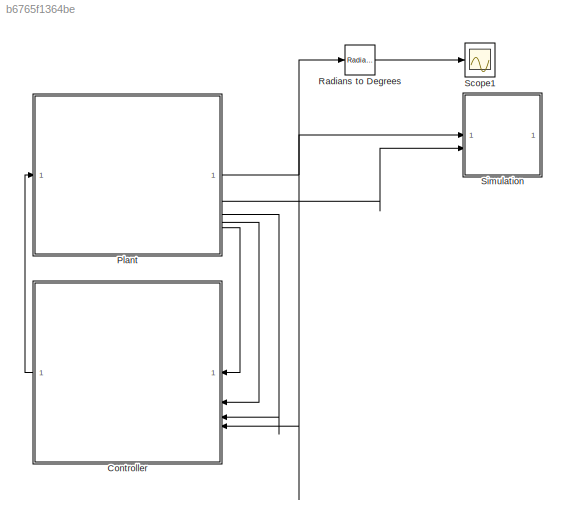
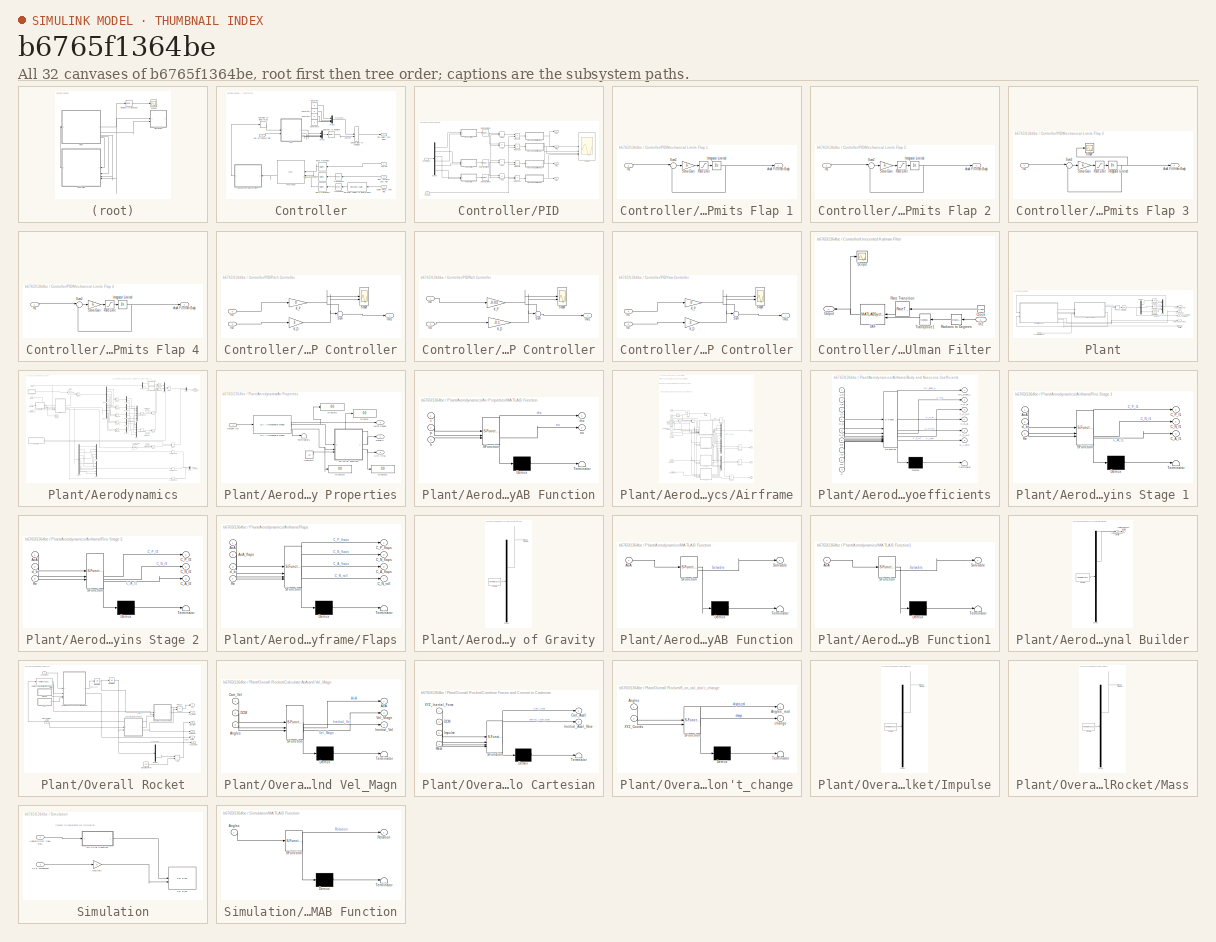
[diagram: thumbnail index - all 32 canvases of the model, root first then tree order]
MODEL slx_b6765f1364be
KIND model
CONFIG AbsTol = auto
CONFIG EnableMultiTasking = on
CONFIG FixedStep = 0.001
CONFIG MaxStep = auto
CONFIG MinStep = auto
CONFIG RelTol = auto
CONFIG SampleTimeConstraint = Unconstrained
CONFIG SolverName = VariableStepAuto
CONFIG StartTime = 0.0
CONFIG StopTime = 5
WORKSPACE source: mxarray member
WORKSPACE Length_NC: Simulink.Parameter (value not decoded)
BLOCK [SubSystem] Controller
BLOCK [Inport] Controller/Angles Pitch, Yaw, Roll
  NameLocation = top
  Port = 4
BLOCK [ComplexToRealImag] Controller/Complex to Real-Imag
  Output = Real
BLOCK [Constant] Controller/Constant
  Value = 0
BLOCK [Constant] Controller/Constant1
  Value = 0
BLOCK [Constant] Controller/Constant2
  Value = 0
BLOCK [Constant] Controller/Constant3
  Value = 0
BLOCK [Reference] Controller/Degrees to Radians  REF=simulink_extras/Transformations/Degrees to
Radians
  SourceBlock = simulink_extras/Transformations/Degrees to\nRadians
  SourceType = DegreesToRadians
BLOCK [ManualSwitch] Controller/Double Click to Toggle2
  CurrentSetting = 0
BLOCK [Outport] Controller/Fin Angle from Body
BLOCK [Inport] Controller/Inertial
  NameLocation = top
BLOCK [Reference] Controller/MPU 6050  REF=mspsensorlib/IMU
  NameLocation = top
  SourceBlock = mspsensorlib/IMU
  SourceType = fusion.simulink.imuSensor
BLOCK [Mux] Controller/Mux2
  DisplayOption = bar
BLOCK [Mux] Controller/Mux3
  DisplayOption = bar
BLOCK [Inport] Controller/Not on Launch Rail
  Port = 2
BLOCK [SubSystem] Controller/PID
BLOCK [Sum] Controller/PID/Add
  IconShape = rectangular
  Inputs = +-
BLOCK [Sum] Controller/PID/Add1
  IconShape = rectangular
BLOCK [Sum] Controller/PID/Add2
  IconShape = rectangular
BLOCK [Sum] Controller/PID/Add3
  IconShape = rectangular
  Inputs = +-
BLOCK [Inport] Controller/PID/Change
  Port = 2
BLOCK [Demux] Controller/PID/Demux
  Outputs = 6
BLOCK [Outport] Controller/PID/Fin 1
BLOCK [Outport] Controller/PID/Fin 2
  Port = 2
BLOCK [Outport] Controller/PID/Fin 3
  Port = 3
BLOCK [Outport] Controller/PID/Fin 4
  Port = 4
BLOCK [SubSystem] Controller/PID/Mechanical Limits Flap 1
BLOCK [Outport] Controller/PID/Mechanical Limits Flap 1/AoA Fin from Body
BLOCK [Inport] Controller/PID/Mechanical Limits Flap 1/In1
BLOCK [Integrator] Controller/PID/Mechanical Limits Flap 1/Integrator Limited
  LimitOutput = on
  LowerSaturationLimit = -15
  UpperSaturationLimit = 15
BLOCK [Saturate] Controller/PID/Mechanical Limits Flap 1/Rate Limit
  LowerLimit = -857.14
  UpperLimit = 857.14
BLOCK [Gain] Controller/PID/Mechanical Limits Flap 1/Servo Gain
  Gain = 6
BLOCK [Sum] Controller/PID/Mechanical Limits Flap 1/Sum2
  Inputs = |+-
BLOCK [SubSystem] Controller/PID/Mechanical Limits Flap 2
BLOCK [Outport] Controller/PID/Mechanical Limits Flap 2/AoA Fin from Body
BLOCK [Inport] Controller/PID/Mechanical Limits Flap 2/In1
BLOCK [Integrator] Controller/PID/Mechanical Limits Flap 2/Integrator Limited
  LimitOutput = on
  LowerSaturationLimit = -15
  UpperSaturationLimit = 15
BLOCK [Saturate] Controller/PID/Mechanical Limits Flap 2/Rate Limit
  LowerLimit = -857.14
  UpperLimit = 857.14
BLOCK [Gain] Controller/PID/Mechanical Limits Flap 2/Servo Gain
  Gain = 6
BLOCK [Sum] Controller/PID/Mechanical Limits Flap 2/Sum2
  Inputs = |+-
BLOCK [SubSystem] Controller/PID/Mechanical Limits Flap 3
BLOCK [Outport] Controller/PID/Mechanical Limits Flap 3/AoA Fin from Body
BLOCK [Inport] Controller/PID/Mechanical Limits Flap 3/In1
BLOCK [Integrator] Controller/PID/Mechanical Limits Flap 3/Integrator Limited
  LimitOutput = on
  LowerSaturationLimit = -15
  UpperSaturationLimit = 15
BLOCK [Saturate] Controller/PID/Mechanical Limits Flap 3/Rate Limit
  LowerLimit = -857.14
  UpperLimit = 857.14
BLOCK [Scope] Controller/PID/Mechanical Limits Flap 3/Scope
  Floating = off
  NumInputPorts = 1
  ScopeSpecificationString = Simulink.scopes.TimeScopeBlockCfg('CurrentConfiguration', extmgr.ConfigurationSet(extmgr.Configuration('Core','General UI',true),extmgr.Configuration('Core','Source UI',true),extmgr.Configuration('Sources','WiredSimulink',true,'DataLoggingVariableName','ScopeData4'),extmgr.Configuration('Visuals','Time Domain',true,'SerializedDisplays',{struct('MinYLimReal','-1.875','MaxYLimReal','16.875','YLabelR...<+1369ch>
BLOCK [Gain] Controller/PID/Mechanical Limits Flap 3/Servo Gain
  Gain = 6
BLOCK [Sum] Controller/PID/Mechanical Limits Flap 3/Sum2
  Inputs = |+-
BLOCK [SubSystem] Controller/PID/Mechanical Limits Flap 4
BLOCK [Outport] Controller/PID/Mechanical Limits Flap 4/AoA Fin from Body
BLOCK [Inport] Controller/PID/Mechanical Limits Flap 4/In1
BLOCK [Integrator] Controller/PID/Mechanical Limits Flap 4/Integrator Limited
  LimitOutput = on
  LowerSaturationLimit = -15
  UpperSaturationLimit = 15
BLOCK [Saturate] Controller/PID/Mechanical Limits Flap 4/Rate Limit
  LowerLimit = -857.14
  UpperLimit = 857.14
BLOCK [Gain] Controller/PID/Mechanical Limits Flap 4/Servo Gain
  Gain = 6
BLOCK [Sum] Controller/PID/Mechanical Limits Flap 4/Sum2
  Inputs = |+-
BLOCK [SubSystem] Controller/PID/Pitch Controller
BLOCK [Inport] Controller/PID/Pitch Controller/In1
BLOCK [Inport] Controller/PID/Pitch Controller/In2
  Port = 2
BLOCK [Gain] Controller/PID/Pitch Controller/K_D
  Gain = 3
BLOCK [Gain] Controller/PID/Pitch Controller/K_P
  Gain = 0
BLOCK [Outport] Controller/PID/Pitch Controller/Out1
BLOCK [Scope] Controller/PID/Pitch Controller/Scope
  Floating = off
  NumInputPorts = 4
  ScopeSpecificationString = Simulink.scopes.TimeScopeBlockCfg('CurrentConfiguration', extmgr.ConfigurationSet(extmgr.Configuration('Core','General UI',true),extmgr.Configuration('Core','Source UI',true),extmgr.Configuration('Sources','WiredSimulink',true,'DataLoggingVariableName','ScopeData4'),extmgr.Configuration('Visuals','Time Domain',true,'SerializedDisplays',{struct('MinYLimReal','-0.00565','MaxYLimReal','0.00089','YLab...<+1755ch>
BLOCK [Sum] Controller/PID/Pitch Controller/Sum
  Inputs = ++++
BLOCK [Product] Controller/PID/Product10
BLOCK [Product] Controller/PID/Product11
BLOCK [Product] Controller/PID/Product8
BLOCK [Product] Controller/PID/Product9
BLOCK [RateTransition] Controller/PID/Rate Transition4
BLOCK [RateTransition] Controller/PID/Rate Transition5
BLOCK [RateTransition] Controller/PID/Rate Transition6
BLOCK [SubSystem] Controller/PID/Roll Controller
BLOCK [Inport] Controller/PID/Roll Controller/In2
BLOCK [Inport] Controller/PID/Roll Controller/In3
  Port = 2
BLOCK [Gain] Controller/PID/Roll Controller/K_D
  Gain = -0.1
BLOCK [Gain] Controller/PID/Roll Controller/K_P
  Gain = -0.03
BLOCK [Outport] Controller/PID/Roll Controller/Out1
BLOCK [Scope] Controller/PID/Roll Controller/Scope
  Floating = off
  NumInputPorts = 4
  ScopeSpecificationString = Simulink.scopes.TimeScopeBlockCfg('CurrentConfiguration', extmgr.ConfigurationSet(extmgr.Configuration('Core','General UI',true),extmgr.Configuration('Core','Source UI',true),extmgr.Configuration('Sources','WiredSimulink',true,'DataLoggingVariableName','ScopeData4'),extmgr.Configuration('Visuals','Time Domain',true,'SerializedDisplays',{struct('MinYLimReal','-0.02201','MaxYLimReal','0.01858','YLab...<+1768ch>
BLOCK [Sum] Controller/PID/Roll Controller/Sum
  Inputs = ++++
BLOCK [Scope] Controller/PID/Scope
  Floating = off
  NumInputPorts = 4
  ScopeSpecificationString = Simulink.scopes.TimeScopeBlockCfg('CurrentConfiguration', extmgr.ConfigurationSet(extmgr.Configuration('Core','General UI',true),extmgr.Configuration('Core','Source UI',true),extmgr.Configuration('Sources','WiredSimulink',true,'DataLoggingVariableName','ScopeData1'),extmgr.Configuration('Visuals','Time Domain',true,'SerializedDisplays',{struct('MinYLimReal','-18.75','MaxYLimReal','18.75','YLabelRe...<+1504ch>
BLOCK [Inport] Controller/PID/UKF Output
BLOCK [SubSystem] Controller/PID/Yaw Controller
BLOCK [Inport] Controller/PID/Yaw Controller/In1
BLOCK [Inport] Controller/PID/Yaw Controller/In2
  Port = 2
BLOCK [Gain] Controller/PID/Yaw Controller/K_D
  Gain = 3
BLOCK [Gain] Controller/PID/Yaw Controller/K_P
  Gain = 0
BLOCK [Outport] Controller/PID/Yaw Controller/Out1
BLOCK [Scope] Controller/PID/Yaw Controller/Scope
  Floating = off
  NumInputPorts = 4
  ScopeSpecificationString = Simulink.scopes.TimeScopeBlockCfg('CurrentConfiguration', extmgr.ConfigurationSet(extmgr.Configuration('Core','General UI',true),extmgr.Configuration('Core','Source UI',true),extmgr.Configuration('Sources','WiredSimulink',true,'DataLoggingVariableName','ScopeData4'),extmgr.Configuration('Visuals','Time Domain',true,'SerializedDisplays',{struct('MinYLimReal','-0.2233','MaxYLimReal','0.24185','YLabe...<+1768ch>
BLOCK [Sum] Controller/PID/Yaw Controller/Sum
  Inputs = ++++
BLOCK [Inport] Controller/Rad. Vel Pitch, Yaw, Roll
  NameLocation = top
  Port = 3
BLOCK [RateTransition] Controller/Rate Transition
  NameLocation = top
  OutPortSampleTime = 0.001
BLOCK [RateTransition] Controller/Rate Transition1
  NameLocation = top
  OutPortSampleTime = 0.001
BLOCK [RateTransition] Controller/Rate Transition2
  NameLocation = top
  OutPortSampleTime = 0.001
BLOCK [Reference] Controller/Rotation Angles to Quaternions  REF=sharedtransform/Rotation Angles to Quaternions
  AttributesFormatString = Rotation Order: %<rotationOrder>
  LibrarySourceBlock = aerolibtransform2/Rotation Angles to Quaternions
  NameLocation = top
  SourceBlock = sharedtransform/Rotation Angles to Quaternions
  SourceType = Ang2Quat
BLOCK [Math] Controller/Transpose
  NameLocation = top
  Operator = transpose
BLOCK [Math] Controller/Transpose1
  NameLocation = top
  Operator = transpose
BLOCK [SubSystem] Controller/Unscented Kalman Filter
  NameLocation = top
BLOCK [Clock] Controller/Unscented Kalman Filter/Clock
  NameLocation = top
BLOCK [Inport] Controller/Unscented Kalman Filter/In2
  NameLocation = top
BLOCK [Outport] Controller/Unscented Kalman Filter/Output
  NameLocation = top
BLOCK [Reference] Controller/Unscented Kalman Filter/Radians to Degrees  REF=simulink_extras/Transformations/Radians
to Degrees
  NameLocation = top
  SourceBlock = simulink_extras/Transformations/Radians\nto Degrees
  SourceType = RadiansToDegrees
BLOCK [RateTransition] Controller/Unscented Kalman Filter/Rate Transition
  NameLocation = top
  OutPortSampleTime = 0.001
BLOCK [Scope] Controller/Unscented Kalman Filter/Scope
  Floating = off
  NumInputPorts = 1
BLOCK [Math] Controller/Unscented Kalman Filter/Transpose1
  NameLocation = top
  Operator = transpose
BLOCK [MATLABSystem] Controller/Unscented Kalman Filter/UKF
  MaskDisplay = disp('UKF');\nport_label('input',1,'time');\nport_label('input',2,'z');\nport_label('output',1,'y');\nport_label('output',2,'P');
  MaskType = UKF
  NameLocation = top
  Q_ = 0.1
  R_ = 0.1
  SimulateUsing = Code generation
  System = UKF
  alfa = 0.001
  beta = 2.0
  kappa = 0.0
  x_0 = 0
BLOCK [SubSystem] Plant
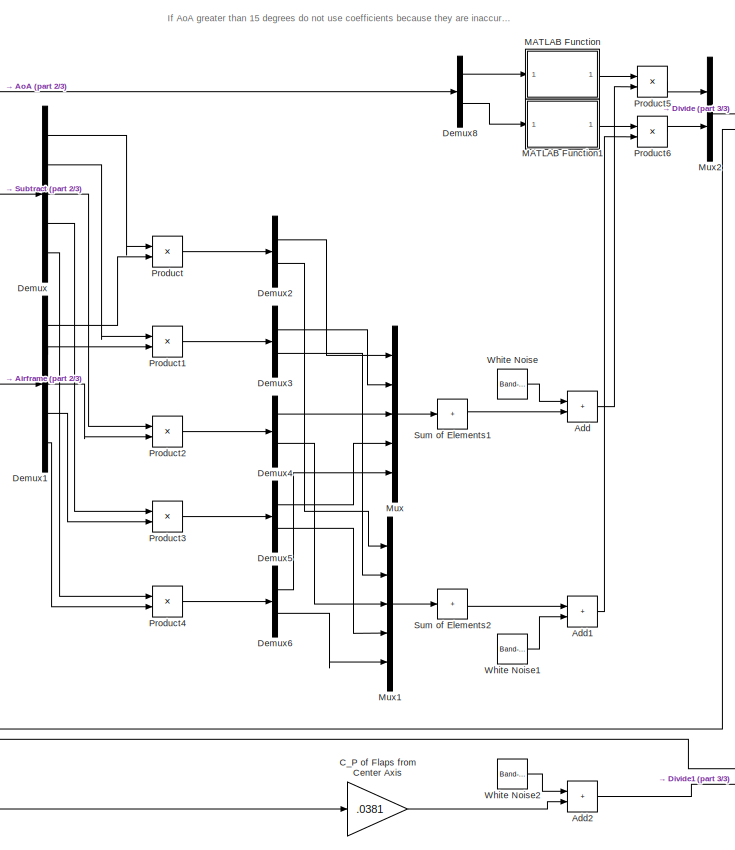
[diagram: Plant/Aerodynamics - part 1/3, central region]
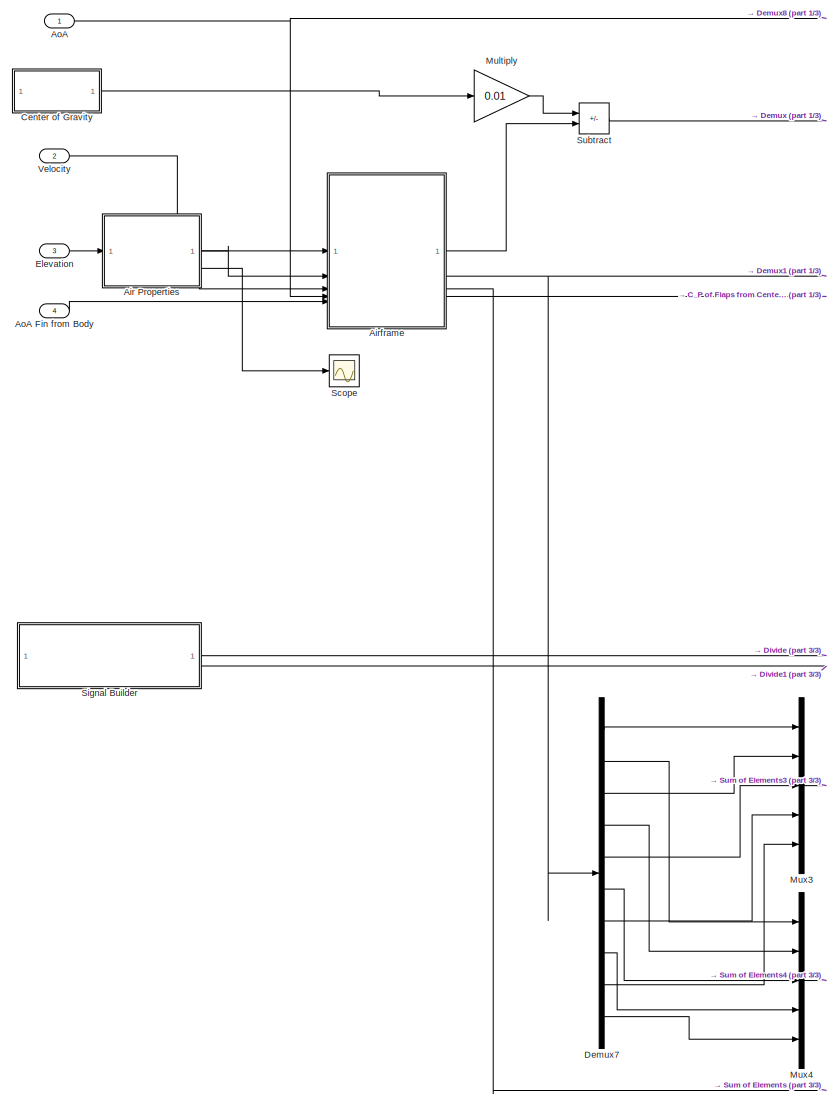
[diagram: Plant/Aerodynamics - part 2/3, left side, full height]
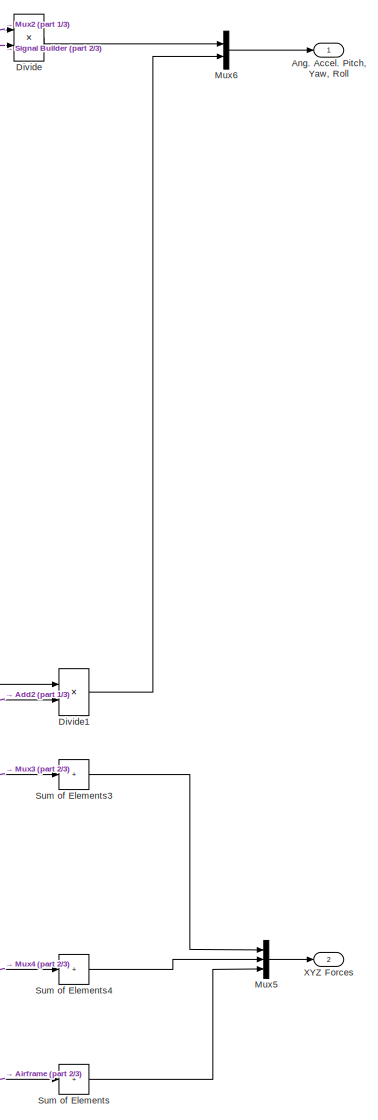
[diagram: Plant/Aerodynamics - part 3/3, right side, full height]
BLOCK [SubSystem] Plant/Aerodynamics
BLOCK [Sum] Plant/Aerodynamics/Add
  IconShape = rectangular
BLOCK [Sum] Plant/Aerodynamics/Add1
  IconShape = rectangular
BLOCK [Sum] Plant/Aerodynamics/Add2
  IconShape = rectangular
BLOCK [SubSystem] Plant/Aerodynamics/Air Properties
BLOCK [Outport] Plant/Aerodynamics/Air Properties/Density
BLOCK [Display] Plant/Aerodynamics/Air Properties/Display
  Decimation = 1
BLOCK [Display] Plant/Aerodynamics/Air Properties/Display1
  Decimation = 1
BLOCK [Display] Plant/Aerodynamics/Air Properties/Display2
  Decimation = 1
BLOCK [Display] Plant/Aerodynamics/Air Properties/Display3
  Decimation = 1
BLOCK [Inport] Plant/Aerodynamics/Air Properties/Height (m)
BLOCK [Constant] Plant/Aerodynamics/Air Properties/Humidity
  Value = 10
BLOCK [Reference] Plant/Aerodynamics/Air Properties/ISA Atmosphere Model  REF=aerolibatmos2/ISA Atmosphere Model
  SourceBlock = aerolibatmos2/ISA Atmosphere Model
  SourceType = International Standard Atmosphere Model
BLOCK [Outport] Plant/Aerodynamics/Air Properties/Kin. Visc.
  Port = 2
BLOCK [SubSystem] Plant/Aerodynamics/Air Properties/MATLAB Function
  ErrorFcn = Stateflow.Translate.translate
  PermitHierarchicalResolution = ExplicitOnly
  SFBlockType = MATLAB Function
  TreatAsAtomicUnit = on
BLOCK [Demux] Plant/Aerodynamics/Air Properties/MATLAB Function/ Demux 
  Outputs = 1
BLOCK [S-Function] Plant/Aerodynamics/Air Properties/MATLAB Function/ SFunction 
  EnableBusSupport = on
  FunctionName = sf_sfun
  PortCounts = [3 3]
  SFcnIsStateOwnerBlock = off
  SFunctionDeploymentMode = off
  Tag = Stateflow S-Function 2
BLOCK [Terminator] Plant/Aerodynamics/Air Properties/MATLAB Function/ Terminator 
BLOCK [Inport] Plant/Aerodynamics/Air Properties/MATLAB Function/h
  Port = 3
BLOCK [Outport] Plant/Aerodynamics/Air Properties/MATLAB Function/nu
  Port = 2
BLOCK [Inport] Plant/Aerodynamics/Air Properties/MATLAB Function/p
  Port = 2
BLOCK [Outport] Plant/Aerodynamics/Air Properties/MATLAB Function/rho
BLOCK [Inport] Plant/Aerodynamics/Air Properties/MATLAB Function/t
BLOCK [Terminator] Plant/Aerodynamics/Air Properties/Terminator1
BLOCK [Outport] Plant/Aerodynamics/Air Properties/Wind Speed
  Port = 3
BLOCK [SubSystem] Plant/Aerodynamics/Airframe
BLOCK [Sum] Plant/Aerodynamics/Airframe/Add
  IconShape = rectangular
BLOCK [Inport] Plant/Aerodynamics/Airframe/AoA
  Port = 4
BLOCK [Inport] Plant/Aerodynamics/Airframe/AoA Fin from Body
  Port = 5
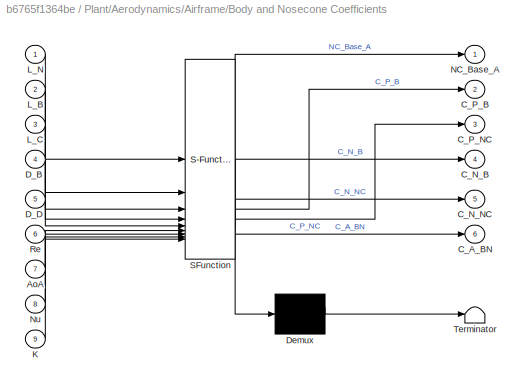
BLOCK [SubSystem] Plant/Aerodynamics/Airframe/Body  and Nosecone Coefficients
  ErrorFcn = Stateflow.Translate.translate
  LibrarySourceBlock = simulink/User-Defined\nFunctions/MATLAB Function
  PermitHierarchicalResolution = ExplicitOnly
  SFBlockType = MATLAB Function
  TreatAsAtomicUnit = on
BLOCK [Demux] Plant/Aerodynamics/Airframe/Body  and Nosecone Coefficients/ Demux 
  Outputs = 1
BLOCK [S-Function] Plant/Aerodynamics/Airframe/Body  and Nosecone Coefficients/ SFunction 
  EnableBusSupport = on
  FunctionName = sf_sfun
  PortCounts = [9 7]
  SFcnIsStateOwnerBlock = off
  SFunctionDeploymentMode = off
  Tag = Stateflow S-Function 3
BLOCK [Terminator] Plant/Aerodynamics/Airframe/Body  and Nosecone Coefficients/ Terminator 
BLOCK [Inport] Plant/Aerodynamics/Airframe/Body  and Nosecone Coefficients/AoA
  Port = 7
BLOCK [Outport] Plant/Aerodynamics/Airframe/Body  and Nosecone Coefficients/C_A_BN
  Port = 6
BLOCK [Outport] Plant/Aerodynamics/Airframe/Body  and Nosecone Coefficients/C_N_B
  Port = 4
BLOCK [Outport] Plant/Aerodynamics/Airframe/Body  and Nosecone Coefficients/C_N_NC
  Port = 5
BLOCK [Outport] Plant/Aerodynamics/Airframe/Body  and Nosecone Coefficients/C_P_B
  Port = 2
BLOCK [Outport] Plant/Aerodynamics/Airframe/Body  and Nosecone Coefficients/C_P_NC
  Port = 3
BLOCK [Inport] Plant/Aerodynamics/Airframe/Body  and Nosecone Coefficients/D_B
  Port = 4
BLOCK [Inport] Plant/Aerodynamics/Airframe/Body  and Nosecone Coefficients/D_D
  Port = 5
BLOCK [Inport] Plant/Aerodynamics/Airframe/Body  and Nosecone Coefficients/K
  Port = 9
BLOCK [Inport] Plant/Aerodynamics/Airframe/Body  and Nosecone Coefficients/L_B
  Port = 2
BLOCK [Inport] Plant/Aerodynamics/Airframe/Body  and Nosecone Coefficients/L_C
  Port = 3
BLOCK [Inport] Plant/Aerodynamics/Airframe/Body  and Nosecone Coefficients/L_N
BLOCK [Outport] Plant/Aerodynamics/Airframe/Body  and Nosecone Coefficients/NC_Base_A
BLOCK [Inport] Plant/Aerodynamics/Airframe/Body  and Nosecone Coefficients/Nu
  Port = 8
BLOCK [Inport] Plant/Aerodynamics/Airframe/Body  and Nosecone Coefficients/Re
  Port = 6
BLOCK [Mux] Plant/Aerodynamics/Airframe/C_A
  DisplayOption = bar
BLOCK [Mux] Plant/Aerodynamics/Airframe/C_N
  DisplayOption = bar
  Inputs = 5
BLOCK [Outport] Plant/Aerodynamics/Airframe/C_P
BLOCK [Inport] Plant/Aerodynamics/Airframe/Density
  Port = 2
BLOCK [Constant] Plant/Aerodynamics/Airframe/Diameter Body
  Value = .079
BLOCK [Product] Plant/Aerodynamics/Airframe/Divide
  Inputs = **
BLOCK [Product] Plant/Aerodynamics/Airframe/Divide3
  Inputs = **/
BLOCK [Outport] Plant/Aerodynamics/Airframe/F_A
  Port = 3
BLOCK [Outport] Plant/Aerodynamics/Airframe/F_N
  Port = 2
BLOCK [SubSystem] Plant/Aerodynamics/Airframe/Fins Stage 1
  ErrorFcn = Stateflow.Translate.translate
  LibrarySourceBlock = simulink/User-Defined\nFunctions/MATLAB Function
  PermitHierarchicalResolution = ExplicitOnly
  SFBlockType = MATLAB Function
  TreatAsAtomicUnit = on
BLOCK [Demux] Plant/Aerodynamics/Airframe/Fins Stage 1/ Demux 
  Outputs = 1
BLOCK [S-Function] Plant/Aerodynamics/Airframe/Fins Stage 1/ SFunction 
  EnableBusSupport = on
  FunctionName = sf_sfun
  PortCounts = [3 4]
  SFcnIsStateOwnerBlock = off
  SFunctionDeploymentMode = off
  Tag = Stateflow S-Function 13
BLOCK [Terminator] Plant/Aerodynamics/Airframe/Fins Stage 1/ Terminator 
BLOCK [Inport] Plant/Aerodynamics/Airframe/Fins Stage 1/AoA
BLOCK [Outport] Plant/Aerodynamics/Airframe/Fins Stage 1/C_A_f1
  Port = 3
BLOCK [Outport] Plant/Aerodynamics/Airframe/Fins Stage 1/C_N_f1
  Port = 2
BLOCK [Outport] Plant/Aerodynamics/Airframe/Fins Stage 1/C_P_f1
BLOCK [Inport] Plant/Aerodynamics/Airframe/Fins Stage 1/Re
  Port = 3
BLOCK [Inport] Plant/Aerodynamics/Airframe/Fins Stage 1/d_bt
  Port = 2
BLOCK [SubSystem] Plant/Aerodynamics/Airframe/Fins Stage 2
  ErrorFcn = Stateflow.Translate.translate
  LibrarySourceBlock = simulink/User-Defined\nFunctions/MATLAB Function
  PermitHierarchicalResolution = ExplicitOnly
  SFBlockType = MATLAB Function
  TreatAsAtomicUnit = on
BLOCK [Demux] Plant/Aerodynamics/Airframe/Fins Stage 2/ Demux 
  Outputs = 1
BLOCK [S-Function] Plant/Aerodynamics/Airframe/Fins Stage 2/ SFunction 
  EnableBusSupport = on
  FunctionName = sf_sfun
  PortCounts = [3 4]
  SFcnIsStateOwnerBlock = off
  SFunctionDeploymentMode = off
  Tag = Stateflow S-Function 11
BLOCK [Terminator] Plant/Aerodynamics/Airframe/Fins Stage 2/ Terminator 
BLOCK [Inport] Plant/Aerodynamics/Airframe/Fins Stage 2/AoA
BLOCK [Outport] Plant/Aerodynamics/Airframe/Fins Stage 2/C_A_f2
  Port = 3
BLOCK [Outport] Plant/Aerodynamics/Airframe/Fins Stage 2/C_N_f2
  Port = 2
BLOCK [Outport] Plant/Aerodynamics/Airframe/Fins Stage 2/C_P_f2
BLOCK [Inport] Plant/Aerodynamics/Airframe/Fins Stage 2/Re
  Port = 3
BLOCK [Inport] Plant/Aerodynamics/Airframe/Fins Stage 2/d_bt
  Port = 2
BLOCK [SubSystem] Plant/Aerodynamics/Airframe/Flaps
  ErrorFcn = Stateflow.Translate.translate
  LibrarySourceBlock = simulink/User-Defined\nFunctions/MATLAB Function
  PermitHierarchicalResolution = ExplicitOnly
  SFBlockType = MATLAB Function
  TreatAsAtomicUnit = on
BLOCK [Demux] Plant/Aerodynamics/Airframe/Flaps/ Demux 
  Outputs = 1
BLOCK [S-Function] Plant/Aerodynamics/Airframe/Flaps/ SFunction 
  EnableBusSupport = on
  FunctionName = sf_sfun
  PortCounts = [4 5]
  SFcnIsStateOwnerBlock = off
  SFunctionDeploymentMode = off
  Tag = Stateflow S-Function 7
BLOCK [Terminator] Plant/Aerodynamics/Airframe/Flaps/ Terminator 
BLOCK [Inport] Plant/Aerodynamics/Airframe/Flaps/AoA
BLOCK [Inport] Plant/Aerodynamics/Airframe/Flaps/AoA_flaps
  Port = 2
BLOCK [Outport] Plant/Aerodynamics/Airframe/Flaps/C_A_flaps
  Port = 3
BLOCK [Outport] Plant/Aerodynamics/Airframe/Flaps/C_N_flaps
  Port = 2
BLOCK [Outport] Plant/Aerodynamics/Airframe/Flaps/C_N_roll
  Port = 4
BLOCK [Outport] Plant/Aerodynamics/Airframe/Flaps/C_P_flaps
BLOCK [Inport] Plant/Aerodynamics/Airframe/Flaps/Re
  Port = 4
BLOCK [Inport] Plant/Aerodynamics/Airframe/Flaps/d_bt
  Port = 3
BLOCK [Constant] Plant/Aerodynamics/Airframe/K_Value
BLOCK [Inport] Plant/Aerodynamics/Airframe/Kin. Visc.
  Port = 3
BLOCK [Constant] Plant/Aerodynamics/Airframe/Length Body
  Value = .08+.61+.783
BLOCK [Constant] Plant/Aerodynamics/Airframe/Length Conical Section
  Value = 0
BLOCK [Constant] Plant/Aerodynamics/Airframe/Length NC
  Value = .33
BLOCK [Gain] Plant/Aerodynamics/Airframe/Multiply
  Gain = 1/2
BLOCK [Mux] Plant/Aerodynamics/Airframe/Mux1
  DisplayOption = bar
  Inputs = 5
BLOCK [Product] Plant/Aerodynamics/Airframe/Product1
BLOCK [Product] Plant/Aerodynamics/Airframe/Product2
BLOCK [Product] Plant/Aerodynamics/Airframe/Product3
BLOCK [Product] Plant/Aerodynamics/Airframe/Product4
BLOCK [Outport] Plant/Aerodynamics/Airframe/Roll
  Port = 4
BLOCK [Math] Plant/Aerodynamics/Airframe/Square
  Operator = square
BLOCK [Inport] Plant/Aerodynamics/Airframe/Velocity
BLOCK [Outport] Plant/Aerodynamics/Ang. Accel. Pitch, Yaw, Roll
BLOCK [Inport] Plant/Aerodynamics/AoA
BLOCK [Inport] Plant/Aerodynamics/AoA Fin from Body
  Port = 4
BLOCK [Gain] Plant/Aerodynamics/C_P of Flaps from Center Axis
  Gain = .0381
BLOCK [SubSystem] Plant/Aerodynamics/Center of Gravity
  ClipboardFcn = sigbuilder_block('clipboard');
  CloseFcn = sigbuilder_block('close');
  ContinueFcn = sigbuilder_block('continue');
  CopyFcn = sigbuilder_block('copy');
  DeleteFcn = sigbuilder_block('delete');
  LoadFcn = sigbuilder_block('load');
  MaskHideContents = on
  ModelCloseFcn = sigbuilder_block('modelClose');
  NameChangeFcn = sigbuilder_block('namechange');
  OpenFcn = sigbuilder_block('open',[309.6 144.6 550.8 400.2 ]);
  PauseFcn = sigbuilder_block('pause');
  PreSaveFcn = sigbuilder_block('preSave');
  StartFcn = sigbuilder_block('start');
  StopFcn = sigbuilder_block('stop');
  Tag = STV Subsys
BLOCK [Demux] Plant/Aerodynamics/Center of Gravity/Demux
  DisplayOption = none
  Outputs = 1
  Tag = STV Demux
BLOCK [FromWorkspace] Plant/Aerodynamics/Center of Gravity/FromWs
  Tag = STV FromWs
  VariableName = tuvar
BLOCK [Outport] Plant/Aerodynamics/Center of Gravity/Signal 2
  Tag = STV Outport
BLOCK [Demux] Plant/Aerodynamics/Demux
  Outputs = 5
BLOCK [Demux] Plant/Aerodynamics/Demux1
  Outputs = 5
BLOCK [Demux] Plant/Aerodynamics/Demux2
  Outputs = 2
BLOCK [Demux] Plant/Aerodynamics/Demux3
  Outputs = 2
BLOCK [Demux] Plant/Aerodynamics/Demux4
  Outputs = 2
BLOCK [Demux] Plant/Aerodynamics/Demux5
  Outputs = 2
BLOCK [Demux] Plant/Aerodynamics/Demux6
  Outputs = 2
BLOCK [Demux] Plant/Aerodynamics/Demux7
  Outputs = 10
BLOCK [Demux] Plant/Aerodynamics/Demux8
  Outputs = 2
BLOCK [Product] Plant/Aerodynamics/Divide
  Inputs = */
BLOCK [Product] Plant/Aerodynamics/Divide1
  Inputs = /*
BLOCK [Inport] Plant/Aerodynamics/Elevation
  Port = 3
BLOCK [SubSystem] Plant/Aerodynamics/MATLAB Function
  ErrorFcn = Stateflow.Translate.translate
  LibrarySourceBlock = simulink/User-Defined\nFunctions/MATLAB Function
  PermitHierarchicalResolution = ExplicitOnly
  SFBlockType = MATLAB Function
  TreatAsAtomicUnit = on
BLOCK [Demux] Plant/Aerodynamics/MATLAB Function/ Demux 
  Outputs = 1
BLOCK [S-Function] Plant/Aerodynamics/MATLAB Function/ SFunction 
  EnableBusSupport = on
  FunctionName = sf_sfun
  PortCounts = [1 2]
  SFcnIsStateOwnerBlock = off
  SFunctionDeploymentMode = off
  Tag = Stateflow S-Function 8
BLOCK [Terminator] Plant/Aerodynamics/MATLAB Function/ Terminator 
BLOCK [Inport] Plant/Aerodynamics/MATLAB Function/AoA
BLOCK [Outport] Plant/Aerodynamics/MATLAB Function/Solvable
BLOCK [SubSystem] Plant/Aerodynamics/MATLAB Function1
  ErrorFcn = Stateflow.Translate.translate
  LibrarySourceBlock = simulink/User-Defined\nFunctions/MATLAB Function
  PermitHierarchicalResolution = ExplicitOnly
  SFBlockType = MATLAB Function
  TreatAsAtomicUnit = on
BLOCK [Demux] Plant/Aerodynamics/MATLAB Function1/ Demux 
  Outputs = 1
BLOCK [S-Function] Plant/Aerodynamics/MATLAB Function1/ SFunction 
  EnableBusSupport = on
  FunctionName = sf_sfun
  PortCounts = [1 2]
  SFcnIsStateOwnerBlock = off
  SFunctionDeploymentMode = off
  Tag = Stateflow S-Function 18
BLOCK [Terminator] Plant/Aerodynamics/MATLAB Function1/ Terminator 
BLOCK [Inport] Plant/Aerodynamics/MATLAB Function1/AoA
BLOCK [Outport] Plant/Aerodynamics/MATLAB Function1/Solvable
BLOCK [Gain] Plant/Aerodynamics/Multiply
  Gain = 0.01
BLOCK [Mux] Plant/Aerodynamics/Mux
  DisplayOption = bar
  Inputs = 5
BLOCK [Mux] Plant/Aerodynamics/Mux1
  DisplayOption = bar
  Inputs = 5
BLOCK [Mux] Plant/Aerodynamics/Mux2
  DisplayOption = bar
  Inputs = 2
BLOCK [Mux] Plant/Aerodynamics/Mux3
  DisplayOption = bar
  Inputs = 5
BLOCK [Mux] Plant/Aerodynamics/Mux4
  DisplayOption = bar
  Inputs = 5
BLOCK [Mux] Plant/Aerodynamics/Mux5
  DisplayOption = bar
  Inputs = 3
BLOCK [Mux] Plant/Aerodynamics/Mux6
  DisplayOption = bar
  Inputs = 2
BLOCK [Product] Plant/Aerodynamics/Product
BLOCK [Product] Plant/Aerodynamics/Product1
BLOCK [Product] Plant/Aerodynamics/Product2
BLOCK [Product] Plant/Aerodynamics/Product3
BLOCK [Product] Plant/Aerodynamics/Product4
BLOCK [Product] Plant/Aerodynamics/Product5
BLOCK [Product] Plant/Aerodynamics/Product6
BLOCK [Scope] Plant/Aerodynamics/Scope
  Floating = off
  NumInputPorts = 1
  ScopeSpecificationString = Simulink.scopes.TimeScopeBlockCfg('CurrentConfiguration', extmgr.ConfigurationSet(extmgr.Configuration('Core','General UI',true),extmgr.Configuration('Core','Source UI',true),extmgr.Configuration('Sources','WiredSimulink',true,'DataLoggingVariableName','ScopeData2'),extmgr.Configuration('Visuals','Time Domain',true,'SerializedDisplays',{struct('MinYLimReal','334.41365','MaxYLimReal','340.94751','Y...<+1452ch>
BLOCK [SubSystem] Plant/Aerodynamics/Signal Builder
  ClipboardFcn = sigbuilder_block('clipboard');
  CloseFcn = sigbuilder_block('close');
  ContinueFcn = sigbuilder_block('continue');
  CopyFcn = sigbuilder_block('copy');
  DeleteFcn = sigbuilder_block('delete');
  LoadFcn = sigbuilder_block('load');
  MaskHideContents = on
  ModelCloseFcn = sigbuilder_block('modelClose');
  NameChangeFcn = sigbuilder_block('namechange');
  OpenFcn = sigbuilder_block('open',[375 140.4 550.8 400.2 ]);
  PauseFcn = sigbuilder_block('pause');
  PreSaveFcn = sigbuilder_block('preSave');
  StartFcn = sigbuilder_block('start');
  StopFcn = sigbuilder_block('stop');
  Tag = STV Subsys
BLOCK [Demux] Plant/Aerodynamics/Signal Builder/Demux
  DisplayOption = none
  Outputs = 2
  Tag = STV Demux
BLOCK [FromWorkspace] Plant/Aerodynamics/Signal Builder/FromWs
  Tag = STV FromWs
  VariableName = tuvar
BLOCK [Outport] Plant/Aerodynamics/Signal Builder/Logitudinal Moment of Inertia
  Tag = STV Outport
BLOCK [Outport] Plant/Aerodynamics/Signal Builder/Rotational Moment of Inertia
  Port = 2
  Tag = STV Outport
BLOCK [Sum] Plant/Aerodynamics/Subtract
  IconShape = rectangular
  Inputs = +-
BLOCK [Sum] Plant/Aerodynamics/Sum of Elements
  IconShape = rectangular
  Inputs = +
BLOCK [Sum] Plant/Aerodynamics/Sum of Elements1
  IconShape = rectangular
  Inputs = +
BLOCK [Sum] Plant/Aerodynamics/Sum of Elements2
  IconShape = rectangular
  Inputs = +
BLOCK [Sum] Plant/Aerodynamics/Sum of Elements3
  IconShape = rectangular
  Inputs = +
BLOCK [Sum] Plant/Aerodynamics/Sum of Elements4
  IconShape = rectangular
  Inputs = +
BLOCK [Inport] Plant/Aerodynamics/Velocity
  Port = 2
BLOCK [Reference] Plant/Aerodynamics/White Noise  REF=simulink/Sources/Band-Limited
White Noise
  SourceBlock = simulink/Sources/Band-Limited\nWhite Noise
  SourceType = Band-Limited White Noise.
BLOCK [Reference] Plant/Aerodynamics/White Noise1  REF=simulink/Sources/Band-Limited
White Noise
  SourceBlock = simulink/Sources/Band-Limited\nWhite Noise
  SourceType = Band-Limited White Noise.
BLOCK [Reference] Plant/Aerodynamics/White Noise2  REF=simulink/Sources/Band-Limited
White Noise
  SourceBlock = simulink/Sources/Band-Limited\nWhite Noise
  SourceType = Band-Limited White Noise.
BLOCK [Outport] Plant/Aerodynamics/XYZ Forces
  Port = 2
BLOCK [Outport] Plant/Angles Pitch, Yaw, Roll
BLOCK [Inport] Plant/AoA Fin from Body
BLOCK [Demux] Plant/Demux
  Outputs = 3
BLOCK [Outport] Plant/Inertial
  Port = 5
BLOCK [Integrator] Plant/Integrator
BLOCK [Integrator] Plant/Integrator1
  InitialCondition = 0*(pi/180)
BLOCK [Integrator] Plant/Integrator2
BLOCK [Integrator] Plant/Integrator3
BLOCK [Mux] Plant/Mux
  DisplayOption = bar
  Inputs = 3
BLOCK [Outport] Plant/Not on Launch Rail
  Port = 4
BLOCK [SubSystem] Plant/Overall Rocket
BLOCK [Sum] Plant/Overall Rocket/Add
  IconShape = rectangular
BLOCK [Outport] Plant/Overall Rocket/AoA
BLOCK [SubSystem] Plant/Overall Rocket/Calculate AoA and Vel_Magn
  ErrorFcn = Stateflow.Translate.translate
  LibrarySourceBlock = simulink/User-Defined\nFunctions/MATLAB Function
  PermitHierarchicalResolution = ExplicitOnly
  SFBlockType = MATLAB Function
  TreatAsAtomicUnit = on
BLOCK [Demux] Plant/Overall Rocket/Calculate AoA and Vel_Magn/ Demux 
  Outputs = 1
BLOCK [S-Function] Plant/Overall Rocket/Calculate AoA and Vel_Magn/ SFunction 
  EnableBusSupport = on
  FunctionName = sf_sfun
  PortCounts = [3 4]
  SFcnIsStateOwnerBlock = off
  SFunctionDeploymentMode = off
  Tag = Stateflow S-Function 10
BLOCK [Terminator] Plant/Overall Rocket/Calculate AoA and Vel_Magn/ Terminator 
BLOCK [Inport] Plant/Overall Rocket/Calculate AoA and Vel_Magn/Angles
  Port = 3
BLOCK [Outport] Plant/Overall Rocket/Calculate AoA and Vel_Magn/AoA
BLOCK [Inport] Plant/Overall Rocket/Calculate AoA and Vel_Magn/Cart_Vel
BLOCK [Inport] Plant/Overall Rocket/Calculate AoA and Vel_Magn/DCM
  Port = 2
BLOCK [Outport] Plant/Overall Rocket/Calculate AoA and Vel_Magn/Inertial_Vel
  Port = 3
BLOCK [Outport] Plant/Overall Rocket/Calculate AoA and Vel_Magn/Vel_Magn
  Port = 2
BLOCK [SubSystem] Plant/Overall Rocket/Combine Forces and Convert to Cartesian
  ErrorFcn = Stateflow.Translate.translate
  LibrarySourceBlock = simulink/User-Defined\nFunctions/MATLAB Function
  PermitHierarchicalResolution = ExplicitOnly
  SFBlockType = MATLAB Function
  TreatAsAtomicUnit = on
BLOCK [Demux] Plant/Overall Rocket/Combine Forces and Convert to Cartesian/ Demux 
  Outputs = 1
BLOCK [S-Function] Plant/Overall Rocket/Combine Forces and Convert to Cartesian/ SFunction 
  EnableBusSupport = on
  FunctionName = sf_sfun
  PortCounts = [4 3]
  SFcnIsStateOwnerBlock = off
  SFunctionDeploymentMode = off
  Tag = Stateflow S-Function 16
BLOCK [Terminator] Plant/Overall Rocket/Combine Forces and Convert to Cartesian/ Terminator 
BLOCK [Outport] Plant/Overall Rocket/Combine Forces and Convert to Cartesian/Cart_Accel
BLOCK [Inport] Plant/Overall Rocket/Combine Forces and Convert to Cartesian/DCM
  Port = 2
BLOCK [Inport] Plant/Overall Rocket/Combine Forces and Convert to Cartesian/Impulse
  Port = 3
BLOCK [Outport] Plant/Overall Rocket/Combine Forces and Convert to Cartesian/Inertial_Accel_New
  Port = 2
BLOCK [Inport] Plant/Overall Rocket/Combine Forces and Convert to Cartesian/Mass
  Port = 4
BLOCK [Inport] Plant/Overall Rocket/Combine Forces and Convert to Cartesian/XYZ_Inertial_Force
BLOCK [Demux] Plant/Overall Rocket/Demux
  Outputs = 3
BLOCK [Outport] Plant/Overall Rocket/Elevation
  Port = 3
BLOCK [Constant] Plant/Overall Rocket/Elevation at FAR
  Value = 630
BLOCK [SubSystem] Plant/Overall Rocket/If_on_rail_don't_change
  ErrorFcn = Stateflow.Translate.translate
  LibrarySourceBlock = simulink/User-Defined\nFunctions/MATLAB Function
  PermitHierarchicalResolution = ExplicitOnly
  SFBlockType = MATLAB Function
  TreatAsAtomicUnit = on
BLOCK [Demux] Plant/Overall Rocket/If_on_rail_don't_change/ Demux 
  Outputs = 1
BLOCK [S-Function] Plant/Overall Rocket/If_on_rail_don't_change/ SFunction 
  EnableBusSupport = on
  FunctionName = sf_sfun
  PortCounts = [2 3]
  SFcnIsStateOwnerBlock = off
  SFunctionDeploymentMode = off
  Tag = Stateflow S-Function 14
BLOCK [Terminator] Plant/Overall Rocket/If_on_rail_don't_change/ Terminator 
BLOCK [Inport] Plant/Overall Rocket/If_on_rail_don't_change/Angles
BLOCK [Outport] Plant/Overall Rocket/If_on_rail_don't_change/Angles_real
BLOCK [Inport] Plant/Overall Rocket/If_on_rail_don't_change/XYZ_Coords
  Port = 2
BLOCK [Outport] Plant/Overall Rocket/If_on_rail_don't_change/change
  Port = 2
BLOCK [SubSystem] Plant/Overall Rocket/Impulse
  ClipboardFcn = sigbuilder_block('clipboard');
  CloseFcn = sigbuilder_block('close');
  ContinueFcn = sigbuilder_block('continue');
  CopyFcn = sigbuilder_block('copy');
  DeleteFcn = sigbuilder_block('delete');
  LoadFcn = sigbuilder_block('load');
  MaskHideContents = on
  ModelCloseFcn = sigbuilder_block('modelClose');
  NameChangeFcn = sigbuilder_block('namechange');
  OpenFcn = sigbuilder_block('open',[396 -4.2 574.2 590.4 ]);
  PauseFcn = sigbuilder_block('pause');
  PreSaveFcn = sigbuilder_block('preSave');
  StartFcn = sigbuilder_block('start');
  StopFcn = sigbuilder_block('stop');
  Tag = STV Subsys
BLOCK [Demux] Plant/Overall Rocket/Impulse/Demux
  DisplayOption = none
  Outputs = 1
  Tag = STV Demux
BLOCK [FromWorkspace] Plant/Overall Rocket/Impulse/FromWs
  Tag = STV FromWs
  VariableName = tuvar
BLOCK [Outport] Plant/Overall Rocket/Impulse/Signal 2
  Tag = STV Outport
BLOCK [Outport] Plant/Overall Rocket/Inertial
  Port = 5
BLOCK [Integrator] Plant/Overall Rocket/Integrator1
  IgnoreLimit = on
BLOCK [Integrator] Plant/Overall Rocket/Integrator6
BLOCK [SubSystem] Plant/Overall Rocket/Mass
  ClipboardFcn = sigbuilder_block('clipboard');
  CloseFcn = sigbuilder_block('close');
  ContinueFcn = sigbuilder_block('continue');
  CopyFcn = sigbuilder_block('copy');
  DeleteFcn = sigbuilder_block('delete');
  LoadFcn = sigbuilder_block('load');
  MaskHideContents = on
  ModelCloseFcn = sigbuilder_block('modelClose');
  NameChangeFcn = sigbuilder_block('namechange');
  OpenFcn = sigbuilder_block('open',[424.8 154.2 550.8 400.2 ]);
  PauseFcn = sigbuilder_block('pause');
  PreSaveFcn = sigbuilder_block('preSave');
  StartFcn = sigbuilder_block('start');
  StopFcn = sigbuilder_block('stop');
  Tag = STV Subsys
BLOCK [Demux] Plant/Overall Rocket/Mass/Demux
  DisplayOption = none
  Outputs = 1
  Tag = STV Demux
BLOCK [FromWorkspace] Plant/Overall Rocket/Mass/FromWs
  Tag = STV FromWs
  VariableName = tuvar
BLOCK [Outport] Plant/Overall Rocket/Mass/Signal 2
  Tag = STV Outport
BLOCK [Outport] Plant/Overall Rocket/Not on Bar
  Port = 4
BLOCK [Inport] Plant/Overall Rocket/Pitch, Yaw, Roll Angle
BLOCK [Product] Plant/Overall Rocket/Product
BLOCK [Reference] Plant/Overall Rocket/Rotation Angles to Direction Cosine Matrix  REF=sharedtransform/Rotation Angles to
Direction Cosine Matrix
  AttributesFormatString = Rotation Order: %<rotationOrder>
  LibrarySourceBlock = aerolibtransform2/Rotation Angles to\nDirection Cosine Matrix
  SourceBlock = sharedtransform/Rotation Angles to\nDirection Cosine Matrix
  SourceType = Ang2DCM
BLOCK [Outport] Plant/Overall Rocket/Vel_Magn
  Port = 2
BLOCK [Outport] Plant/Overall Rocket/XYZ Coords
  Port = 6
BLOCK [Inport] Plant/Overall Rocket/XYZ Forces
  Port = 2
BLOCK [Product] Plant/Product
BLOCK [Outport] Plant/Rad. Vel Pitch, Yaw, Roll
  Port = 3
BLOCK [Outport] Plant/XYZ Coords
  Port = 2
BLOCK [Reference] Radians to Degrees  REF=simulink_extras/Transformations/Radians
to Degrees
  SourceBlock = simulink_extras/Transformations/Radians\nto Degrees
  SourceType = RadiansToDegrees
BLOCK [Scope] Scope1
  Floating = off
  NumInputPorts = 1
  ScopeSpecificationString = Simulink.scopes.TimeScopeBlockCfg('CurrentConfiguration', extmgr.ConfigurationSet(extmgr.Configuration('Core','General UI',true),extmgr.Configuration('Core','Source UI',true),extmgr.Configuration('Sources','WiredSimulink',true,'DataLoggingVariableName','ScopeData7'),extmgr.Configuration('Visuals','Time Domain',true,'SerializedDisplays',{struct('MinYLimReal','-37.03104','MaxYLimReal','66.37776','YL...<+1952ch>
BLOCK [SubSystem] Simulation
BLOCK [Inport] Simulation/Angles Pitch, Yaw, Roll
BLOCK [SubSystem] Simulation/MATLAB Function
  ErrorFcn = Stateflow.Translate.translate
  LibrarySourceBlock = simulink/User-Defined\nFunctions/MATLAB Function
  PermitHierarchicalResolution = ExplicitOnly
  SFBlockType = MATLAB Function
  TreatAsAtomicUnit = on
BLOCK [Demux] Simulation/MATLAB Function/ Demux 
  Outputs = 1
BLOCK [S-Function] Simulation/MATLAB Function/ SFunction 
  EnableBusSupport = on
  FunctionName = sf_sfun
  PortCounts = [1 2]
  SFcnIsStateOwnerBlock = off
  SFunctionDeploymentMode = off
  Tag = Stateflow S-Function 6
BLOCK [Terminator] Simulation/MATLAB Function/ Terminator 
BLOCK [Inport] Simulation/MATLAB Function/Angles
BLOCK [Outport] Simulation/MATLAB Function/Rotation
BLOCK [Gain] Simulation/Multiply
  Gain = 0
BLOCK [Reference] Simulation/VR Sink  REF=vrlib/VR Sink
  InstantiateOnLoad = on
  SourceBlock = vrlib/VR Sink
  SourceType = Virtual Reality Sink
BLOCK [Inport] Simulation/XYZ Movement
  Port = 2
ANNOTATION Plant/Aerodynamics: If AoA greater than 15 degrees do not use coefficients because they are inaccurate
ANNOTATION Plant/Aerodynamics/Airframe: http://argoshpr.ch/joomla1/articles/pdf/sentinel39-galejs.pdf - for lift coefficients
ANNOTATION Plant/Aerodynamics/Airframe: http://servidor.demec.ufpr.br/CFD/bibliografia/aerodinamica/Crowell_1996.pdf - for center of pressures extended
ANNOTATION Plant/Aerodynamics/Airframe: https://cambridgerocket.sourceforge.net/AerodynamicCoefficients.pdf
ANNOTATION Simulation: Convert to coordinates for simulation
LINE Controller/Angles Pitch, Yaw, Roll:1 -> Controller/Rotation Angles to Quaternions:1
LINE Controller/Complex to Real-Imag:1 -> Controller/PID:1
LINE Controller/Constant1:1 -> Controller/Mux3:2
LINE Controller/Constant2:1 -> Controller/Mux3:3
LINE Controller/Constant3:1 -> Controller/Mux3:4
LINE Controller/Constant:1 -> Controller/Mux3:1
LINE Controller/Degrees to Radians:1 -> Controller/Double Click to Toggle2:2
LINE Controller/Double Click to Toggle2:1 -> Controller/Fin Angle from Body:1
LINE Controller/Inertial:1 -> Controller/Rate Transition:1
LINE Controller/MPU 6050:2 -> Controller/Unscented Kalman Filter:1
LINE Controller/Mux2:1 -> Controller/Degrees to Radians:1
LINE Controller/Mux3:1 -> Controller/Double Click to Toggle2:1
LINE Controller/Not on Launch Rail:1 -> Controller/PID:2
LINE Controller/PID/Add1:1 -> Controller/PID/Product9:1
LINE Controller/PID/Add2:1 -> Controller/PID/Product8:1
LINE Controller/PID/Add3:1 -> Controller/PID/Product11:1
LINE Controller/PID/Add:1 -> Controller/PID/Product10:1
NET Controller/PID/Change:1 -> Controller/PID/Product10:2, Controller/PID/Product11:2, Controller/PID/Product8:2, Controller/PID/Product9:2
LINE Controller/PID/Demux:1 -> Controller/PID/Pitch Controller:1
LINE Controller/PID/Demux:2 -> Controller/PID/Yaw Controller:1
LINE Controller/PID/Demux:3 -> Controller/PID/Roll Controller:1
LINE Controller/PID/Demux:4 -> Controller/PID/Pitch Controller:2
LINE Controller/PID/Demux:5 -> Controller/PID/Yaw Controller:2
LINE Controller/PID/Demux:6 -> Controller/PID/Roll Controller:2
LINE Controller/PID/Mechanical Limits Flap 1/In1:1 -> Controller/PID/Mechanical Limits Flap 1/Sum2:1
NET Controller/PID/Mechanical Limits Flap 1/Integrator Limited:1 -> Controller/PID/Mechanical Limits Flap 1/AoA Fin from Body:1, Controller/PID/Mechanical Limits Flap 1/Sum2:2
LINE Controller/PID/Mechanical Limits Flap 1/Rate Limit:1 -> Controller/PID/Mechanical Limits Flap 1/Integrator Limited:1
LINE Controller/PID/Mechanical Limits Flap 1/Servo Gain:1 -> Controller/PID/Mechanical Limits Flap 1/Rate Limit:1
LINE Controller/PID/Mechanical Limits Flap 1/Sum2:1 -> Controller/PID/Mechanical Limits Flap 1/Servo Gain:1
NET Controller/PID/Mechanical Limits Flap 1:1 -> Controller/PID/Fin 1:1, Controller/PID/Scope:1
LINE Controller/PID/Mechanical Limits Flap 2/In1:1 -> Controller/PID/Mechanical Limits Flap 2/Sum2:1
NET Controller/PID/Mechanical Limits Flap 2/Integrator Limited:1 -> Controller/PID/Mechanical Limits Flap 2/AoA Fin from Body:1, Controller/PID/Mechanical Limits Flap 2/Sum2:2
LINE Controller/PID/Mechanical Limits Flap 2/Rate Limit:1 -> Controller/PID/Mechanical Limits Flap 2/Integrator Limited:1
LINE Controller/PID/Mechanical Limits Flap 2/Servo Gain:1 -> Controller/PID/Mechanical Limits Flap 2/Rate Limit:1
LINE Controller/PID/Mechanical Limits Flap 2/Sum2:1 -> Controller/PID/Mechanical Limits Flap 2/Servo Gain:1
NET Controller/PID/Mechanical Limits Flap 2:1 -> Controller/PID/Fin 2:1, Controller/PID/Scope:2
LINE Controller/PID/Mechanical Limits Flap 3/In1:1 -> Controller/PID/Mechanical Limits Flap 3/Sum2:1
NET Controller/PID/Mechanical Limits Flap 3/Integrator Limited:1 -> Controller/PID/Mechanical Limits Flap 3/AoA Fin from Body:1, Controller/PID/Mechanical Limits Flap 3/Scope:1, Controller/PID/Mechanical Limits Flap 3/Sum2:2
LINE Controller/PID/Mechanical Limits Flap 3/Rate Limit:1 -> Controller/PID/Mechanical Limits Flap 3/Integrator Limited:1
LINE Controller/PID/Mechanical Limits Flap 3/Servo Gain:1 -> Controller/PID/Mechanical Limits Flap 3/Rate Limit:1
LINE Controller/PID/Mechanical Limits Flap 3/Sum2:1 -> Controller/PID/Mechanical Limits Flap 3/Servo Gain:1
NET Controller/PID/Mechanical Limits Flap 3:1 -> Controller/PID/Fin 3:1, Controller/PID/Scope:3
LINE Controller/PID/Mechanical Limits Flap 4/In1:1 -> Controller/PID/Mechanical Limits Flap 4/Sum2:1
NET Controller/PID/Mechanical Limits Flap 4/Integrator Limited:1 -> Controller/PID/Mechanical Limits Flap 4/AoA Fin from Body:1, Controller/PID/Mechanical Limits Flap 4/Sum2:2
LINE Controller/PID/Mechanical Limits Flap 4/Rate Limit:1 -> Controller/PID/Mechanical Limits Flap 4/Integrator Limited:1
LINE Controller/PID/Mechanical Limits Flap 4/Servo Gain:1 -> Controller/PID/Mechanical Limits Flap 4/Rate Limit:1
LINE Controller/PID/Mechanical Limits Flap 4/Sum2:1 -> Controller/PID/Mechanical Limits Flap 4/Servo Gain:1
NET Controller/PID/Mechanical Limits Flap 4:1 -> Controller/PID/Fin 4:1, Controller/PID/Scope:4
LINE Controller/PID/Pitch Controller/In1:1 -> Controller/PID/Pitch Controller/K_P:1
LINE Controller/PID/Pitch Controller/In2:1 -> Controller/PID/Pitch Controller/K_D:1
NET Controller/PID/Pitch Controller/K_D:1 -> Controller/PID/Pitch Controller/Scope:2, Controller/PID/Pitch Controller/Sum:2
NET Controller/PID/Pitch Controller/K_P:1 -> Controller/PID/Pitch Controller/Scope:1, Controller/PID/Pitch Controller/Sum:1
LINE Controller/PID/Pitch Controller/Sum:1 -> Controller/PID/Pitch Controller/Out1:1
LINE Controller/PID/Pitch Controller:1 -> Controller/PID/Rate Transition4:1
LINE Controller/PID/Product10:1 -> Controller/PID/Mechanical Limits Flap 3:1
LINE Controller/PID/Product11:1 -> Controller/PID/Mechanical Limits Flap 4:1
LINE Controller/PID/Product8:1 -> Controller/PID/Mechanical Limits Flap 1:1
LINE Controller/PID/Product9:1 -> Controller/PID/Mechanical Limits Flap 2:1
NET Controller/PID/Rate Transition4:1 -> Controller/PID/Add2:1, Controller/PID/Add:1
NET Controller/PID/Rate Transition5:1 -> Controller/PID/Add1:2, Controller/PID/Add3:1
NET Controller/PID/Rate Transition6:1 -> Controller/PID/Add1:1, Controller/PID/Add2:2, Controller/PID/Add3:2, Controller/PID/Add:2
LINE Controller/PID/Roll Controller/In2:1 -> Controller/PID/Roll Controller/K_P:1
LINE Controller/PID/Roll Controller/In3:1 -> Controller/PID/Roll Controller/K_D:1
NET Controller/PID/Roll Controller/K_D:1 -> Controller/PID/Roll Controller/Scope:2, Controller/PID/Roll Controller/Sum:2
NET Controller/PID/Roll Controller/K_P:1 -> Controller/PID/Roll Controller/Scope:1, Controller/PID/Roll Controller/Sum:1
LINE Controller/PID/Roll Controller/Sum:1 -> Controller/PID/Roll Controller/Out1:1
LINE Controller/PID/Roll Controller:1 -> Controller/PID/Rate Transition6:1
LINE Controller/PID/UKF Output:1 -> Controller/PID/Demux:1
LINE Controller/PID/Yaw Controller/In1:1 -> Controller/PID/Yaw Controller/K_P:1
LINE Controller/PID/Yaw Controller/In2:1 -> Controller/PID/Yaw Controller/K_D:1
NET Controller/PID/Yaw Controller/K_D:1 -> Controller/PID/Yaw Controller/Scope:2, Controller/PID/Yaw Controller/Sum:2
NET Controller/PID/Yaw Controller/K_P:1 -> Controller/PID/Yaw Controller/Scope:1, Controller/PID/Yaw Controller/Sum:1
LINE Controller/PID/Yaw Controller/Sum:1 -> Controller/PID/Yaw Controller/Out1:1
LINE Controller/PID/Yaw Controller:1 -> Controller/PID/Rate Transition5:1
LINE Controller/PID:1 -> Controller/Mux2:1
LINE Controller/PID:2 -> Controller/Mux2:2
LINE Controller/PID:3 -> Controller/Mux2:3
LINE Controller/PID:4 -> Controller/Mux2:4
LINE Controller/Rad. Vel Pitch, Yaw, Roll:1 -> Controller/Transpose1:1
LINE Controller/Rate Transition1:1 -> Controller/MPU 6050:2
LINE Controller/Rate Transition2:1 -> Controller/MPU 6050:3
LINE Controller/Rate Transition:1 -> Controller/MPU 6050:1
LINE Controller/Rotation Angles to Quaternions:1 -> Controller/Transpose:1
LINE Controller/Transpose1:1 -> Controller/Rate Transition1:1
LINE Controller/Transpose:1 -> Controller/Rate Transition2:1
LINE Controller/Unscented Kalman Filter/Clock:1 -> Controller/Unscented Kalman Filter/Rate Transition:1
LINE Controller/Unscented Kalman Filter/In2:1 -> Controller/Unscented Kalman Filter/Radians to Degrees:1
LINE Controller/Unscented Kalman Filter/Radians to Degrees:1 -> Controller/Unscented Kalman Filter/Transpose1:1
LINE Controller/Unscented Kalman Filter/Rate Transition:1 -> Controller/Unscented Kalman Filter/UKF:1
LINE Controller/Unscented Kalman Filter/Transpose1:1 -> Controller/Unscented Kalman Filter/UKF:2
NET Controller/Unscented Kalman Filter/UKF:1 -> Controller/Unscented Kalman Filter/Output:1, Controller/Unscented Kalman Filter/Scope:1
LINE Controller/Unscented Kalman Filter:1 -> Controller/Complex to Real-Imag:1
LINE Controller:1 -> Plant:1
LINE Plant/Aerodynamics/Add1:1 -> Plant/Aerodynamics/Product6:2
LINE Plant/Aerodynamics/Add2:1 -> Plant/Aerodynamics/Divide1:2
LINE Plant/Aerodynamics/Add:1 -> Plant/Aerodynamics/Product5:2
LINE Plant/Aerodynamics/Air Properties/Height (m):1 -> Plant/Aerodynamics/Air Properties/ISA Atmosphere Model:1
LINE Plant/Aerodynamics/Air Properties/Humidity:1 -> Plant/Aerodynamics/Air Properties/MATLAB Function:3
NET Plant/Aerodynamics/Air Properties/ISA Atmosphere Model:1 -> Plant/Aerodynamics/Air Properties/Display2:1, Plant/Aerodynamics/Air Properties/MATLAB Function:1
LINE Plant/Aerodynamics/Air Properties/ISA Atmosphere Model:2 -> Plant/Aerodynamics/Air Properties/Wind Speed:1
NET Plant/Aerodynamics/Air Properties/ISA Atmosphere Model:3 -> Plant/Aerodynamics/Air Properties/Display3:1, Plant/Aerodynamics/Air Properties/MATLAB Function:2
LINE Plant/Aerodynamics/Air Properties/ISA Atmosphere Model:4 -> Plant/Aerodynamics/Air Properties/Terminator1:1
NET Plant/Aerodynamics/Air Properties/MATLAB Function:1 -> Plant/Aerodynamics/Air Properties/Density:1, Plant/Aerodynamics/Air Properties/Display:1
NET Plant/Aerodynamics/Air Properties/MATLAB Function:2 -> Plant/Aerodynamics/Air Properties/Display1:1, Plant/Aerodynamics/Air Properties/Kin. Visc.:1
LINE Plant/Aerodynamics/Air Properties:1 -> Plant/Aerodynamics/Airframe:2
LINE Plant/Aerodynamics/Air Properties:2 -> Plant/Aerodynamics/Airframe:3
LINE Plant/Aerodynamics/Air Properties:3 -> Plant/Aerodynamics/Scope:1
LINE Plant/Aerodynamics/Airframe/Add:1 -> Plant/Aerodynamics/Airframe/Divide3:2
LINE Plant/Aerodynamics/Airframe/AoA Fin from Body:1 -> Plant/Aerodynamics/Airframe/Flaps:2
NET Plant/Aerodynamics/Airframe/AoA:1 -> Plant/Aerodynamics/Airframe/Body  and Nosecone Coefficients:7, Plant/Aerodynamics/Airframe/Fins Stage 1:1, Plant/Aerodynamics/Airframe/Fins Stage 2:1, Plant/Aerodynamics/Airframe/Flaps:1
LINE Plant/Aerodynamics/Airframe/Body  and Nosecone Coefficients:1 -> Plant/Aerodynamics/Airframe/Product2:2
LINE Plant/Aerodynamics/Airframe/Body  and Nosecone Coefficients:2 -> Plant/Aerodynamics/Airframe/Mux1:1
LINE Plant/Aerodynamics/Airframe/Body  and Nosecone Coefficients:3 -> Plant/Aerodynamics/Airframe/Mux1:2
LINE Plant/Aerodynamics/Airframe/Body  and Nosecone Coefficients:4 -> Plant/Aerodynamics/Airframe/C_N:1
LINE Plant/Aerodynamics/Airframe/Body  and Nosecone Coefficients:5 -> Plant/Aerodynamics/Airframe/C_N:2
LINE Plant/Aerodynamics/Airframe/Body  and Nosecone Coefficients:6 -> Plant/Aerodynamics/Airframe/C_A:1
LINE Plant/Aerodynamics/Airframe/C_A:1 -> Plant/Aerodynamics/Airframe/Product4:2
LINE Plant/Aerodynamics/Airframe/C_N:1 -> Plant/Aerodynamics/Airframe/Product3:1
LINE Plant/Aerodynamics/Airframe/Density:1 -> Plant/Aerodynamics/Airframe/Divide:1
NET Plant/Aerodynamics/Airframe/Diameter Body:1 -> Plant/Aerodynamics/Airframe/Body  and Nosecone Coefficients:4, Plant/Aerodynamics/Airframe/Body  and Nosecone Coefficients:5, Plant/Aerodynamics/Airframe/Fins Stage 1:2, Plant/Aerodynamics/Airframe/Fins Stage 2:2, Plant/Aerodynamics/Airframe/Flaps:3
NET Plant/Aerodynamics/Airframe/Divide3:1 -> Plant/Aerodynamics/Airframe/Body  and Nosecone Coefficients:6, Plant/Aerodynamics/Airframe/Fins Stage 1:3, Plant/Aerodynamics/Airframe/Fins Stage 2:3, Plant/Aerodynamics/Airframe/Flaps:4
LINE Plant/Aerodynamics/Airframe/Divide:1 -> Plant/Aerodynamics/Airframe/Multiply:1
LINE Plant/Aerodynamics/Airframe/Fins Stage 1:1 -> Plant/Aerodynamics/Airframe/Mux1:3
LINE Plant/Aerodynamics/Airframe/Fins Stage 1:2 -> Plant/Aerodynamics/Airframe/C_N:3
LINE Plant/Aerodynamics/Airframe/Fins Stage 1:3 -> Plant/Aerodynamics/Airframe/C_A:2
LINE Plant/Aerodynamics/Airframe/Fins Stage 2:1 -> Plant/Aerodynamics/Airframe/Mux1:4
LINE Plant/Aerodynamics/Airframe/Fins Stage 2:2 -> Plant/Aerodynamics/Airframe/C_N:4
LINE Plant/Aerodynamics/Airframe/Fins Stage 2:3 -> Plant/Aerodynamics/Airframe/C_A:3
LINE Plant/Aerodynamics/Airframe/Flaps:1 -> Plant/Aerodynamics/Airframe/Mux1:5
LINE Plant/Aerodynamics/Airframe/Flaps:2 -> Plant/Aerodynamics/Airframe/C_N:5
LINE Plant/Aerodynamics/Airframe/Flaps:3 -> Plant/Aerodynamics/Airframe/C_A:4
LINE Plant/Aerodynamics/Airframe/Flaps:4 -> Plant/Aerodynamics/Airframe/Product1:2
LINE Plant/Aerodynamics/Airframe/K_Value:1 -> Plant/Aerodynamics/Airframe/Body  and Nosecone Coefficients:9
NET Plant/Aerodynamics/Airframe/Kin. Visc.:1 -> Plant/Aerodynamics/Airframe/Body  and Nosecone Coefficients:8, Plant/Aerodynamics/Airframe/Divide3:3
NET Plant/Aerodynamics/Airframe/Length Body:1 -> Plant/Aerodynamics/Airframe/Add:2, Plant/Aerodynamics/Airframe/Body  and Nosecone Coefficients:2
LINE Plant/Aerodynamics/Airframe/Length Conical Section:1 -> Plant/Aerodynamics/Airframe/Body  and Nosecone Coefficients:3
NET Plant/Aerodynamics/Airframe/Length NC:1 -> Plant/Aerodynamics/Airframe/Add:1, Plant/Aerodynamics/Airframe/Body  and Nosecone Coefficients:1
LINE Plant/Aerodynamics/Airframe/Multiply:1 -> Plant/Aerodynamics/Airframe/Product2:1
LINE Plant/Aerodynamics/Airframe/Mux1:1 -> Plant/Aerodynamics/Airframe/C_P:1
LINE Plant/Aerodynamics/Airframe/Product1:1 -> Plant/Aerodynamics/Airframe/Roll:1
NET Plant/Aerodynamics/Airframe/Product2:1 -> Plant/Aerodynamics/Airframe/Product1:1, Plant/Aerodynamics/Airframe/Product3:2, Plant/Aerodynamics/Airframe/Product4:1
LINE Plant/Aerodynamics/Airframe/Product3:1 -> Plant/Aerodynamics/Airframe/F_N:1
LINE Plant/Aerodynamics/Airframe/Product4:1 -> Plant/Aerodynamics/Airframe/F_A:1
NET Plant/Aerodynamics/Airframe/Square:1 -> Plant/Aerodynamics/Airframe/Divide3:1, Plant/Aerodynamics/Airframe/Divide:2
LINE Plant/Aerodynamics/Airframe/Velocity:1 -> Plant/Aerodynamics/Airframe/Square:1
LINE Plant/Aerodynamics/Airframe:1 -> Plant/Aerodynamics/Subtract:2
NET Plant/Aerodynamics/Airframe:2 -> Plant/Aerodynamics/Demux1:1, Plant/Aerodynamics/Demux7:1
LINE Plant/Aerodynamics/Airframe:3 -> Plant/Aerodynamics/Sum of Elements:1
LINE Plant/Aerodynamics/Airframe:4 -> Plant/Aerodynamics/C_P of Flaps from Center Axis:1
LINE Plant/Aerodynamics/AoA Fin from Body:1 -> Plant/Aerodynamics/Airframe:5
NET Plant/Aerodynamics/AoA:1 -> Plant/Aerodynamics/Airframe:4, Plant/Aerodynamics/Demux8:1
LINE Plant/Aerodynamics/C_P of Flaps from Center Axis:1 -> Plant/Aerodynamics/Add2:2
LINE Plant/Aerodynamics/Center of Gravity:1 -> Plant/Aerodynamics/Multiply:1
LINE Plant/Aerodynamics/Demux1:1 -> Plant/Aerodynamics/Product:2
LINE Plant/Aerodynamics/Demux1:2 -> Plant/Aerodynamics/Product1:2
LINE Plant/Aerodynamics/Demux1:3 -> Plant/Aerodynamics/Product2:2
LINE Plant/Aerodynamics/Demux1:4 -> Plant/Aerodynamics/Product3:2
LINE Plant/Aerodynamics/Demux1:5 -> Plant/Aerodynamics/Product4:2
LINE Plant/Aerodynamics/Demux2:1 -> Plant/Aerodynamics/Mux:1
LINE Plant/Aerodynamics/Demux2:2 -> Plant/Aerodynamics/Mux1:1
LINE Plant/Aerodynamics/Demux3:1 -> Plant/Aerodynamics/Mux:2
LINE Plant/Aerodynamics/Demux3:2 -> Plant/Aerodynamics/Mux1:2
LINE Plant/Aerodynamics/Demux4:1 -> Plant/Aerodynamics/Mux:3
LINE Plant/Aerodynamics/Demux4:2 -> Plant/Aerodynamics/Mux1:3
LINE Plant/Aerodynamics/Demux5:1 -> Plant/Aerodynamics/Mux:4
LINE Plant/Aerodynamics/Demux5:2 -> Plant/Aerodynamics/Mux1:4
LINE Plant/Aerodynamics/Demux6:1 -> Plant/Aerodynamics/Mux:5
LINE Plant/Aerodynamics/Demux6:2 -> Plant/Aerodynamics/Mux1:5
LINE Plant/Aerodynamics/Demux7:1 -> Plant/Aerodynamics/Mux3:1
LINE Plant/Aerodynamics/Demux7:10 -> Plant/Aerodynamics/Mux4:5
LINE Plant/Aerodynamics/Demux7:2 -> Plant/Aerodynamics/Mux4:1
LINE Plant/Aerodynamics/Demux7:3 -> Plant/Aerodynamics/Mux3:2
LINE Plant/Aerodynamics/Demux7:4 -> Plant/Aerodynamics/Mux4:2
LINE Plant/Aerodynamics/Demux7:5 -> Plant/Aerodynamics/Mux3:3
LINE Plant/Aerodynamics/Demux7:6 -> Plant/Aerodynamics/Mux4:3
LINE Plant/Aerodynamics/Demux7:7 -> Plant/Aerodynamics/Mux3:4
LINE Plant/Aerodynamics/Demux7:8 -> Plant/Aerodynamics/Mux4:4
LINE Plant/Aerodynamics/Demux7:9 -> Plant/Aerodynamics/Mux3:5
LINE Plant/Aerodynamics/Demux8:1 -> Plant/Aerodynamics/MATLAB Function:1
LINE Plant/Aerodynamics/Demux8:2 -> Plant/Aerodynamics/MATLAB Function1:1
LINE Plant/Aerodynamics/Demux:1 -> Plant/Aerodynamics/Product:1
LINE Plant/Aerodynamics/Demux:2 -> Plant/Aerodynamics/Product1:1
LINE Plant/Aerodynamics/Demux:3 -> Plant/Aerodynamics/Product2:1
LINE Plant/Aerodynamics/Demux:4 -> Plant/Aerodynamics/Product3:1
LINE Plant/Aerodynamics/Demux:5 -> Plant/Aerodynamics/Product4:1
LINE Plant/Aerodynamics/Divide1:1 -> Plant/Aerodynamics/Mux6:2
LINE Plant/Aerodynamics/Divide:1 -> Plant/Aerodynamics/Mux6:1
LINE Plant/Aerodynamics/Elevation:1 -> Plant/Aerodynamics/Air Properties:1
LINE Plant/Aerodynamics/MATLAB Function1:1 -> Plant/Aerodynamics/Product6:1
LINE Plant/Aerodynamics/MATLAB Function:1 -> Plant/Aerodynamics/Product5:1
LINE Plant/Aerodynamics/Multiply:1 -> Plant/Aerodynamics/Subtract:1
LINE Plant/Aerodynamics/Mux1:1 -> Plant/Aerodynamics/Sum of Elements2:1
LINE Plant/Aerodynamics/Mux2:1 -> Plant/Aerodynamics/Divide:1
LINE Plant/Aerodynamics/Mux3:1 -> Plant/Aerodynamics/Sum of Elements3:1
LINE Plant/Aerodynamics/Mux4:1 -> Plant/Aerodynamics/Sum of Elements4:1
LINE Plant/Aerodynamics/Mux5:1 -> Plant/Aerodynamics/XYZ Forces:1
LINE Plant/Aerodynamics/Mux6:1 -> Plant/Aerodynamics/Ang. Accel. Pitch, Yaw, Roll:1
LINE Plant/Aerodynamics/Mux:1 -> Plant/Aerodynamics/Sum of Elements1:1
LINE Plant/Aerodynamics/Product1:1 -> Plant/Aerodynamics/Demux3:1
LINE Plant/Aerodynamics/Product2:1 -> Plant/Aerodynamics/Demux4:1
LINE Plant/Aerodynamics/Product3:1 -> Plant/Aerodynamics/Demux5:1
LINE Plant/Aerodynamics/Product4:1 -> Plant/Aerodynamics/Demux6:1
LINE Plant/Aerodynamics/Product5:1 -> Plant/Aerodynamics/Mux2:1
LINE Plant/Aerodynamics/Product6:1 -> Plant/Aerodynamics/Mux2:2
LINE Plant/Aerodynamics/Product:1 -> Plant/Aerodynamics/Demux2:1
LINE Plant/Aerodynamics/Signal Builder:1 -> Plant/Aerodynamics/Divide:2
LINE Plant/Aerodynamics/Signal Builder:2 -> Plant/Aerodynamics/Divide1:1
LINE Plant/Aerodynamics/Subtract:1 -> Plant/Aerodynamics/Demux:1
LINE Plant/Aerodynamics/Sum of Elements1:1 -> Plant/Aerodynamics/Add:2
LINE Plant/Aerodynamics/Sum of Elements2:1 -> Plant/Aerodynamics/Add1:1
LINE Plant/Aerodynamics/Sum of Elements3:1 -> Plant/Aerodynamics/Mux5:1
LINE Plant/Aerodynamics/Sum of Elements4:1 -> Plant/Aerodynamics/Mux5:2
LINE Plant/Aerodynamics/Sum of Elements:1 -> Plant/Aerodynamics/Mux5:3
LINE Plant/Aerodynamics/Velocity:1 -> Plant/Aerodynamics/Airframe:1
LINE Plant/Aerodynamics/White Noise1:1 -> Plant/Aerodynamics/Add1:2
LINE Plant/Aerodynamics/White Noise2:1 -> Plant/Aerodynamics/Add2:1
LINE Plant/Aerodynamics/White Noise:1 -> Plant/Aerodynamics/Add:1
LINE Plant/Aerodynamics:1 -> Plant/Product:1
LINE Plant/Aerodynamics:2 -> Plant/Overall Rocket:2
LINE Plant/AoA Fin from Body:1 -> Plant/Aerodynamics:4
LINE Plant/Demux:1 -> Plant/Integrator1:1
LINE Plant/Demux:2 -> Plant/Integrator2:1
LINE Plant/Demux:3 -> Plant/Integrator3:1
LINE Plant/Integrator1:1 -> Plant/Mux:1
LINE Plant/Integrator2:1 -> Plant/Mux:2
LINE Plant/Integrator3:1 -> Plant/Mux:3
NET Plant/Integrator:1 -> Plant/Demux:1, Plant/Rad. Vel Pitch, Yaw, Roll:1
NET Plant/Mux:1 -> Plant/Angles Pitch, Yaw, Roll:1, Plant/Overall Rocket:1
LINE Plant/Overall Rocket/Add:1 -> Plant/Overall Rocket/Elevation:1
LINE Plant/Overall Rocket/Calculate AoA and Vel_Magn:1 -> Plant/Overall Rocket/Product:1
LINE Plant/Overall Rocket/Calculate AoA and Vel_Magn:2 -> Plant/Overall Rocket/Vel_Magn:1
LINE Plant/Overall Rocket/Combine Forces and Convert to Cartesian:1 -> Plant/Overall Rocket/Integrator1:1
LINE Plant/Overall Rocket/Combine Forces and Convert to Cartesian:2 -> Plant/Overall Rocket/Inertial:1
LINE Plant/Overall Rocket/Demux:3 -> Plant/Overall Rocket/Add:1
LINE Plant/Overall Rocket/Elevation at FAR:1 -> Plant/Overall Rocket/Add:2
NET Plant/Overall Rocket/If_on_rail_don't_change:1 -> Plant/Overall Rocket/Calculate AoA and Vel_Magn:3, Plant/Overall Rocket/Rotation Angles to Direction Cosine Matrix:1
NET Plant/Overall Rocket/If_on_rail_don't_change:2 -> Plant/Overall Rocket/Not on Bar:1, Plant/Overall Rocket/Product:2
LINE Plant/Overall Rocket/Impulse:1 -> Plant/Overall Rocket/Combine Forces and Convert to Cartesian:3
NET Plant/Overall Rocket/Integrator1:1 -> Plant/Overall Rocket/Calculate AoA and Vel_Magn:1, Plant/Overall Rocket/Integrator6:1
NET Plant/Overall Rocket/Integrator6:1 -> Plant/Overall Rocket/Demux:1, Plant/Overall Rocket/If_on_rail_don't_change:2, Plant/Overall Rocket/XYZ Coords:1
LINE Plant/Overall Rocket/Mass:1 -> Plant/Overall Rocket/Combine Forces and Convert to Cartesian:4
LINE Plant/Overall Rocket/Pitch, Yaw, Roll Angle:1 -> Plant/Overall Rocket/If_on_rail_don't_change:1
LINE Plant/Overall Rocket/Product:1 -> Plant/Overall Rocket/AoA:1
NET Plant/Overall Rocket/Rotation Angles to Direction Cosine Matrix:1 -> Plant/Overall Rocket/Calculate AoA and Vel_Magn:2, Plant/Overall Rocket/Combine Forces and Convert to Cartesian:2
LINE Plant/Overall Rocket/XYZ Forces:1 -> Plant/Overall Rocket/Combine Forces and Convert to Cartesian:1
LINE Plant/Overall Rocket:1 -> Plant/Aerodynamics:1
LINE Plant/Overall Rocket:2 -> Plant/Aerodynamics:2
LINE Plant/Overall Rocket:3 -> Plant/Aerodynamics:3
NET Plant/Overall Rocket:4 -> Plant/Not on Launch Rail:1, Plant/Product:2
LINE Plant/Overall Rocket:5 -> Plant/Inertial:1
LINE Plant/Overall Rocket:6 -> Plant/XYZ Coords:1
LINE Plant/Product:1 -> Plant/Integrator:1
NET Plant:1 -> Controller:4, Radians to Degrees:1, Simulation:1
LINE Plant:2 -> Simulation:2
LINE Plant:3 -> Controller:3
LINE Plant:4 -> Controller:2
LINE Plant:5 -> Controller:1
LINE Radians to Degrees:1 -> Scope1:1
LINE Simulation/Angles Pitch, Yaw, Roll:1 -> Simulation/MATLAB Function:1
LINE Simulation/MATLAB Function:1 -> Simulation/VR Sink:1
LINE Simulation/Multiply:1 -> Simulation/VR Sink:2
LINE Simulation/XYZ Movement:1 -> Simulation/Multiply:1
note: NET lines group one-source signal fan-out (src -> all destinations, sorted); 1:1 wires keep LINE
CHART Plant/Aerodynamics/Airframe/Fins Stage 1 states=1 transitions=1
  STATE_LABEL 'eML_blk_kernel()'
  STATE_LABEL 'SCRIPT:\nfunction [C_P_f1, C_N_f1, C_A_f1]  = fcn(AoA, d_bt,Re) %only for trapezoidal fins\n[C_N_f1, C_P_f1, C_A_f1] = Fins_Stage_1_Coefficients(d_bt, AoA, Re);\n\n\n\n\n\n\n\n\n'
CHART Plant/Overall Rocket/If_on_rail_don't_change states=1 transitions=1
  STATE_LABEL 'eML_blk_kernel()'
  STATE_LABEL 'SCRIPT:\nfunction [Angles_real, change] = fcn(Angles, XYZ_Coords)\n[Angles_real, change] = If_on_rail_dont_change(XYZ_Coords, Angles);\n'
CHART Plant/Overall Rocket/Combine Forces and Convert to Cartesian states=1 transitions=1
  STATE_LABEL 'eML_blk_kernel()'
  STATE_LABEL 'SCRIPT:\nfunction [Cart_Accel,Inertial_Accel_New] = fcn(XYZ_Inertial_Force, DCM, Impulse, Mass)\n[Cart_Accel, Inertial_Accel_New] = Combine_Forces_and_Convert_to_Cartesian(XYZ_Inertial_Force, Impulse, Mass, DCM);\n\n\n\n\n\n\n'
CHART Plant/Aerodynamics/MATLAB Function1 states=1 transitions=1
  STATE_LABEL 'eML_blk_kernel()'
  STATE_LABEL 'SCRIPT:\nfunction Solvable = fcn(AoA)\nif abs(AoA) > deg2rad(15)\n    Solvable = 0;\nelse\n    Solvable = 1;\nend\n'
CHART Plant/Aerodynamics/Air Properties/MATLAB Function states=1 transitions=1
  STATE_LABEL 'eML_blk_kernel()'
  STATE_LABEL 'SCRIPT:\nfunction [rho,nu] = AirDensityViscosity(t, p, h)\n\n\n\n% AirProperties calculates a variety of air thermodynamic properties from \n% measured values of temperature, pressure and humidity. \n% \n% Variables able to calcuated: \n%   rho         [kg m^-3]       Density\n%   mu          [N s m^-2]      Dynamic viscosity\n%   k           [W m^-1 K^-1]   Thermal conductivity\n%   c_p         [J kg^-1 K^-1...<+3608ch>'
CHART Plant/Aerodynamics/Airframe/Body  and Nosecone Coefficients states=1 transitions=1
  STATE_LABEL 'eML_blk_kernel()'
  STATE_LABEL 'SCRIPT:\nfunction [NC_Base_A,C_P_B,C_P_NC,C_N_B,C_N_NC,C_A_BN] = Coefficients(L_N, L_B, L_C, D_B, D_D, Re, AoA, Nu, K)\n[NC_Base_A, C_N_B, C_N_NC, C_A_BN, C_P_NC, C_P_B] = Body_and_Nosecone_Coefficients(Re, L_N, L_B, D_B, D_D, L_C, AoA, Nu, K);\n'
CHART Simulation/MATLAB Function states=1 transitions=1
  STATE_LABEL 'eML_blk_kernel()'
  STATE_LABEL 'SCRIPT:\nfunction Rotation  = fcn(Angles)\n\nRotation = [sin(Angles(2))*cos(Angles(1)); \n              cos(Angles(2))*cos(Angles(1));\n              sin(Angles(1));\n              Angles(3)];'
CHART Plant/Aerodynamics/Airframe/Flaps states=1 transitions=1
  STATE_LABEL 'eML_blk_kernel()'
  STATE_LABEL 'SCRIPT:\nfunction [C_P_flaps,C_N_flaps,C_A_flaps,C_N_roll] = fcn(AoA,AoA_flaps,d_bt,Re) %only for trapezoidal fins\n[C_N_flaps, C_N_roll, C_P_flaps, C_A_flaps] = Active_Fins_Coefficients(d_bt, AoA, AoA_flaps, Re);\n\n'
CHART Plant/Aerodynamics/MATLAB Function states=1 transitions=1
  STATE_LABEL 'eML_blk_kernel()'
  STATE_LABEL 'SCRIPT:\nfunction Solvable = fcn(AoA)\nif abs(AoA) > deg2rad(15)\n    Solvable = 0;\nelse\n    Solvable = 1;\nend\n'
CHART Plant/Overall Rocket/Calculate AoA and Vel_Magn states=1 transitions=1
  STATE_LABEL 'eML_blk_kernel()'
  STATE_LABEL 'SCRIPT:\nfunction [AoA,Vel_Magn,Inertial_Vel] = fcn(Cart_Vel, DCM, Angles)\n[Vel_Magn, Inertial_Vel, AoA] = Calculate_AoA_and_Vel_Magn(Cart_Vel, DCM, Angles);\n\n\n'
CHART Plant/Aerodynamics/Airframe/Fins Stage 2 states=1 transitions=1
  STATE_LABEL 'eML_blk_kernel()'
  STATE_LABEL 'SCRIPT:\nfunction [C_P_f2,C_N_f2,C_A_f2] = fcn(AoA, d_bt,Re) %only for trapezoidal fins\n[C_N_f2, C_P_f2, C_A_f2] = Fins_Stage_2_Coefficients(d_bt, AoA, Re);\n'
CHART  states=0 transitions=0
CHART  states=0 transitions=0
CHART  states=0 transitions=0
CHART  states=0 transitions=0
CHART  states=0 transitions=0
CHART  states=0 transitions=0
CHART  states=0 transitions=0
CHART  states=0 transitions=0
CHART  states=0 transitions=0
CHART  states=0 transitions=0
CHART  states=0 transitions=0
